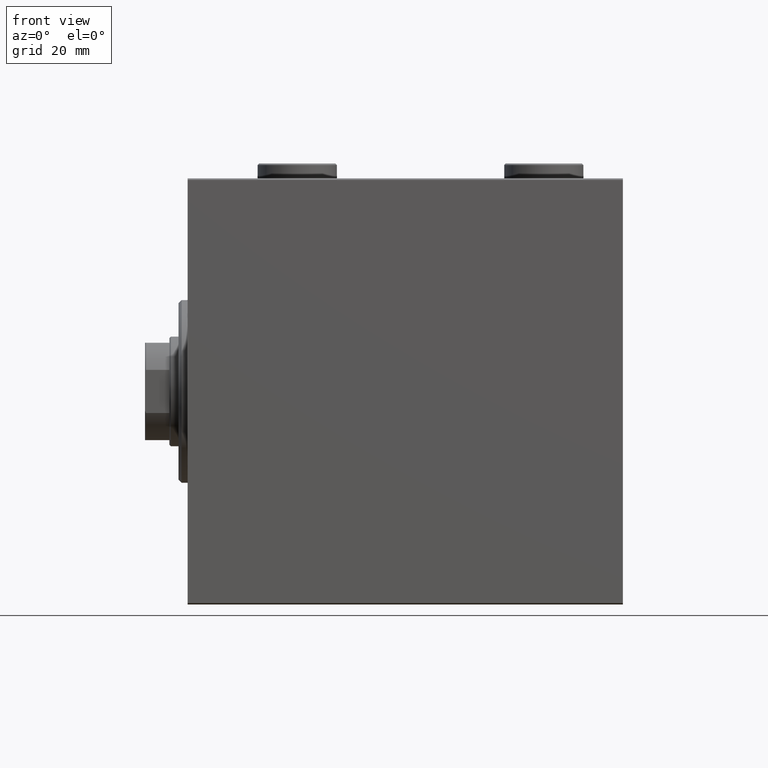
[diagram: clean part render]
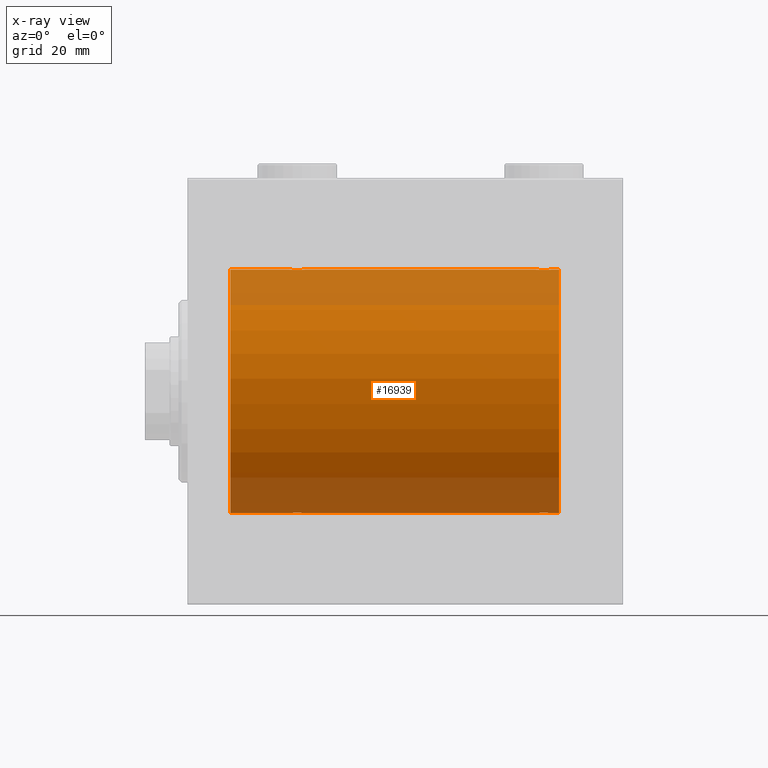
[diagram: x-ray — body ghosted, one internal face saturated and labeled with its STEP entity id]
A machine part, front view, then the same camera in x-ray: the body is ghosted and one INTERNAL B-rep face — a face not visible from any outside direction — is saturated and labeled: STEP entity #16939.
In plain terms, the highlighted cylindrical surface (partial cylindrical patch) has radius 40 mm, axis along (-1, -0, -0).
Its self-contained STEP definition (entity closure, byte-faithful):
#56 = EDGE_CURVE ( 'NONE', #6050, #11014, #20903, .T. ) ;
#741 = CARTESIAN_POINT ( 'NONE',  ( 114.6149239908464779, -1.830402106103529380, 39.95843610133493229 ) ) ;
#964 = CARTESIAN_POINT ( 'NONE',  ( 116.2213047658425609, -2.903766417398247590, 39.89448096967571189 ) ) ;
#1172 = CARTESIAN_POINT ( 'NONE',  ( 122.0000000000000000, 0.000000000000000000, 40.00000000000000000 ) ) ;
#1711 = CARTESIAN_POINT ( 'NONE',  ( 36.77455678826340346, -2.904869018727227914, 39.89440043036668726 ) ) ;
#1962 = VERTEX_POINT ( 'NONE', #36568 ) ;
#2569 = VECTOR ( 'NONE', #42600, 1000.000000000000000 ) ;
#2767 = CARTESIAN_POINT ( 'NONE',  ( 115.1730981536758236, -2.387636253591827629, -39.92882473497732576 ) ) ;
#2986 = CARTESIAN_POINT ( 'NONE',  ( 119.9042517365134728, -0.7773146824711011371, -39.99291453282344833 ) ) ;
#3216 = CARTESIAN_POINT ( 'NONE',  ( 115.0186372048576828, -2.261082456166712884, -39.93628274425758207 ) ) ;
#3403 = ORIENTED_EDGE ( 'NONE', *, *, #32275, .T. ) ;
#3758 = CARTESIAN_POINT ( 'NONE',  ( 114.0957482634864419, -0.7773146824711071323, 39.99291453282344833 ) ) ;
#3872 = CARTESIAN_POINT ( 'NONE',  ( 38.69721340580881730, -1.327859336864143147, -39.97836169682019403 ) ) ;
#4014 = CIRCLE ( 'NONE', #8441, 40.00000000000000000 ) ;
#4105 = CARTESIAN_POINT ( 'NONE',  ( 38.99999999999999289, -0.1957844162750507766, -40.00000000000000711 ) ) ;
#4661 = EDGE_CURVE ( 'NONE', #25065, #33351, #19022, .T. ) ;
#4780 = DIRECTION ( 'NONE',  ( -1.000000000000000000, 0.000000000000000000, 0.000000000000000000 ) ) ;
#4967 = CARTESIAN_POINT ( 'NONE',  ( 38.69537007708436249, -1.331594428131642971, 39.97823692017208685 ) ) ;
#5187 = CARTESIAN_POINT ( 'NONE',  ( 38.92026174991647736, -0.7903958539027394758, 39.99381900068937767 ) ) ;
#5734 = EDGE_CURVE ( 'NONE', #38635, #30618, #10103, .T. ) ;
#5970 = DIRECTION ( 'NONE',  ( -1.000000000000000000, -0.000000000000000000, -0.000000000000000000 ) ) ;
#6016 = CARTESIAN_POINT ( 'NONE',  ( 119.3850760091535221, -1.830402106103519166, -39.95843610133493229 ) ) ;
#6050 = VERTEX_POINT ( 'NONE', #17841 ) ;
#6685 = CARTESIAN_POINT ( 'NONE',  ( 116.2254432117365326, -2.904869018727227914, -39.89440043036668015 ) ) ;
#6886 = CARTESIAN_POINT ( 'NONE',  ( 37.83044822822400022, -2.384933850258100563, -39.92898715513240404 ) ) ;
#7127 = CARTESIAN_POINT ( 'NONE',  ( 38.84665273013138176, -0.9668189122103330035, -39.98872185468385254 ) ) ;
#7237 = CARTESIAN_POINT ( 'NONE',  ( 116.7995871398079970, -2.999840380514755100, 39.88735335562824957 ) ) ;
#7344 = CARTESIAN_POINT ( 'NONE',  ( 33.61748319088535908, -1.833695109615715468, -39.95828327492363741 ) ) ;
#7548 = ORIENTED_EDGE ( 'NONE', *, *, #23116, .F. ) ;
#7563 = CARTESIAN_POINT ( 'NONE',  ( 35.60890307490667794, -2.980812880639891027, -39.88879797994688658 ) ) ;
#7917 = CARTESIAN_POINT ( 'NONE',  ( 118.9813627951422745, -2.261082456166716881, 39.93628274425758207 ) ) ;
#8425 = CARTESIAN_POINT ( 'NONE',  ( 33.15334726986859692, -0.9668189122103391098, 39.98872185468385254 ) ) ;
#8441 = AXIS2_PLACEMENT_3D ( 'NONE', #15399, #4780, #43585 ) ;
#8512 = DIRECTION ( 'NONE',  ( -1.000000000000000000, -0.000000000000000000, -0.000000000000000000 ) ) ;
#8638 = ORIENTED_EDGE ( 'NONE', *, *, #35678, .T. ) ;
#8660 = CARTESIAN_POINT ( 'NONE',  ( 38.60188728128492386, -1.506322235190783232, 39.97196309111974699 ) ) ;
#8758 = CARTESIAN_POINT ( 'NONE',  ( 122.0000000000000000, 0.000000000000000000, 0.000000000000000000 ) ) ;
#8888 = CARTESIAN_POINT ( 'NONE',  ( 32.99999999999997158, -0.1957844162750547734, 40.00000000000000000 ) ) ;
#8969 = CARTESIAN_POINT ( 'NONE',  ( 122.0000000000000000, 4.898587196589412237E-15, -40.00000000000000000 ) ) ;
#9209 = DIRECTION ( 'NONE',  ( 0.000000000000000000, 0.000000000000000000, 1.000000000000000000 ) ) ;
#9239 = LINE ( 'NONE', #19865, #21706 ) ;
#9293 = CARTESIAN_POINT ( 'NONE',  ( 113.9999999999999716, -1.483492375313373751E-23, 40.00000000000000000 ) ) ;
#9480 = CARTESIAN_POINT ( 'NONE',  ( 115.6714635525370340, -2.696981015661936265, -39.90904630908468675 ) ) ;
#9697 = CARTESIAN_POINT ( 'NONE',  ( 114.7417032967949524, -1.984537326394312906, -39.95097977400578060 ) ) ;
#10103 = B_SPLINE_CURVE_WITH_KNOTS ( 'NONE', 3,
 ( #14032, #4105, #42001, #10349, #7127, #3872, #45471, #14720, #27903, #18182, #6886, #42461, #25102, #10806, #39216, #31585, #17727, #13815, #7563, #10127, #28798, #24887, #28128, #38995, #10575, #21640, #7344, #11025, #20743, #24426, #34840, #32038 ),
 .UNSPECIFIED., .F., .F.,
 ( 4, 2, 2, 2, 2, 2, 2, 2, 2, 2, 2, 2, 2, 2, 2, 4 ),
 ( 0.009382660366305108773, 0.009968941372944144577, 0.01055522237958318038, 0.01114150338622221618, 0.01172778439286125199, 0.01231406539950028606, 0.01290034640613932186, 0.01348662741277835767, 0.01407290841941739347, 0.01465918942605642927, 0.01524547043269546508, 0.01583175143933450088, 0.01641803244597353495, 0.01700431345261257249, 0.01759059445925161003, 0.01876315647252967816 ),
 .UNSPECIFIED. ) ;
#10127 = CARTESIAN_POINT ( 'NONE',  ( 35.22544321173658943, -2.904869018727214591, -39.89440043036668015 ) ) ;
#10155 = CARTESIAN_POINT ( 'NONE',  ( 117.7786952341574391, -2.903766417398244037, -39.89448096967572610 ) ) ;
#10349 = CARTESIAN_POINT ( 'NONE',  ( 38.90425173651352253, -0.7773146824710974734, -39.99291453282344122 ) ) ;
#10379 = CARTESIAN_POINT ( 'NONE',  ( 116.8043946892691025, -3.000157693440646867, -39.88732948994960026 ) ) ;
#10575 = CARTESIAN_POINT ( 'NONE',  ( 34.01863720485771125, -2.261082456166699561, -39.93628274425758917 ) ) ;
#10610 = CARTESIAN_POINT ( 'NONE',  ( 39.00000000000000000, 4.071785502645759669E-15, 40.00000000000000000 ) ) ;
#10806 = CARTESIAN_POINT ( 'NONE',  ( 36.96938341894463065, -2.845855236045339520, -39.89870693240651178 ) ) ;
#10921 = CARTESIAN_POINT ( 'NONE',  ( 115.4955691708653234, -2.602909538701771996, 39.91537030566259148 ) ) ;
#11014 = VERTEX_POINT ( 'NONE', #27084 ) ;
#11025 = CARTESIAN_POINT ( 'NONE',  ( 33.39811271871507614, -1.506322235190780345, -39.97196309111976120 ) ) ;
#11185 = DIRECTION ( 'NONE',  ( -1.000000000000000000, -0.000000000000000000, -0.000000000000000000 ) ) ;
#11341 = CIRCLE ( 'NONE', #25377, 40.00000000000000000 ) ;
#11343 = ORIENTED_EDGE ( 'NONE', *, *, #38558, .T. ) ;
#11606 = CARTESIAN_POINT ( 'NONE',  ( 118.5008846840403578, -2.604941918888326935, 39.91523680494982784 ) ) ;
#11625 = CARTESIAN_POINT ( 'NONE',  ( 13.99999999999999822, 0.000000000000000000, 0.000000000000000000 ) ) ;
#11882 = CARTESIAN_POINT ( 'NONE',  ( 34.66775731134134730, -2.695129988695744494, 39.90917164320281074 ) ) ;
#12349 = CARTESIAN_POINT ( 'NONE',  ( 33.30278659419118270, -1.327859336864150475, 39.97836169682017982 ) ) ;
#12940 = CARTESIAN_POINT ( 'NONE',  ( 117.9693834189446449, -2.845855236045348846, -39.89870693240651178 ) ) ;
#13165 = CARTESIAN_POINT ( 'NONE',  ( 120.0000000000000142, -0.1957844162750523864, -40.00000000000000000 ) ) ;
#13815 = CARTESIAN_POINT ( 'NONE',  ( 35.80439468926913804, -3.000157693440631324, -39.88732948994960026 ) ) ;
#13843 = CARTESIAN_POINT ( 'NONE',  ( 119.6972134058087960, -1.327859336864152251, -39.97836169682017271 ) ) ;
#14032 = CARTESIAN_POINT ( 'NONE',  ( 39.00000000000000000, 4.898587181755365697E-15, -40.00000000000000000 ) ) ;
#14150 = CARTESIAN_POINT ( 'NONE',  ( 113.9999999999999716, -1.483492375313373751E-23, 40.00000000000000000 ) ) ;
#14379 = CARTESIAN_POINT ( 'NONE',  ( 114.3956640008791510, -1.502129635934016383, 39.97212271185185983 ) ) ;
#14720 = CARTESIAN_POINT ( 'NONE',  ( 38.38507600915353635, -1.830402106103512505, -39.95843610133492518 ) ) ;
#14853 = CARTESIAN_POINT ( 'NONE',  ( 39.00000000000000000, 4.898587181755365697E-15, -40.00000000000000000 ) ) ;
#14889 = CARTESIAN_POINT ( 'NONE',  ( 37.50088468404035069, -2.604941918888316721, 39.91523680494982784 ) ) ;
#15008 = DIRECTION ( 'NONE',  ( -1.000000000000000000, -0.000000000000000000, -0.000000000000000000 ) ) ;
#15356 = CARTESIAN_POINT ( 'NONE',  ( 35.03061658105534804, -2.845855236045349734, 39.89870693240651889 ) ) ;
#15399 = CARTESIAN_POINT ( 'NONE',  ( 122.0000000000000000, 0.000000000000000000, 0.000000000000000000 ) ) ;
#15862 = EDGE_CURVE ( 'NONE', #25065, #21968, #26085, .T. ) ;
#16295 = ORIENTED_EDGE ( 'NONE', *, *, #17220, .F. ) ;
#16554 = ORIENTED_EDGE ( 'NONE', *, *, #5734, .T. ) ;
#16572 = VECTOR ( 'NONE', #8512, 1000.000000000000000 ) ;
#16637 = B_SPLINE_CURVE_WITH_KNOTS ( 'NONE', 3,
 ( #20551, #13165, #41344, #2986, #45268, #13843, #20323, #6016, #24235, #27707, #20772, #41128, #41811, #12940, #10155, #21003, #38339, #10379, #34188, #6685, #20097, #9480, #23560, #2767, #3216, #9697, #23779, #27932, #17300, #37665, #35111, #34419 ),
 .UNSPECIFIED., .F., .F.,
 ( 4, 2, 2, 2, 2, 2, 2, 2, 2, 2, 2, 2, 2, 2, 2, 4 ),
 ( 0.009382660366305122651, 0.009968941372944160190, 0.01055522237958319946, 0.01114150338622223700, 0.01172778439286127627, 0.01231406539950031381, 0.01290034640613935135, 0.01348662741277838716, 0.01407290841941742469, 0.01465918942605646223, 0.01524547043269549804, 0.01583175143933453557, 0.01641803244597357311, 0.01700431345261261065, 0.01759059445925164819, 0.01876315647252972327 ),
 .UNSPECIFIED. ) ;
#16939 = ADVANCED_FACE ( 'NONE', ( #22834 ), #36717, .F. ) ;
#17220 = EDGE_CURVE ( 'NONE', #6050, #31789, #4014, .T. ) ;
#17300 = CARTESIAN_POINT ( 'NONE',  ( 114.3046299229155949, -1.331594428131648300, -39.97823692017208685 ) ) ;
#17617 = CARTESIAN_POINT ( 'NONE',  ( 115.0153855218771781, -2.258217541132916395, 39.93644519243652979 ) ) ;
#17727 = CARTESIAN_POINT ( 'NONE',  ( 36.20041286019198168, -2.999840380514735116, -39.88735335562824957 ) ) ;
#17841 = CARTESIAN_POINT ( 'NONE',  ( 122.0000000000000000, 4.898587196589412237E-15, -40.00000000000000000 ) ) ;
#18065 = CARTESIAN_POINT ( 'NONE',  ( 114.3027865941911756, -1.327859336864157358, 39.97836169682016561 ) ) ;
#18182 = CARTESIAN_POINT ( 'NONE',  ( 37.98461447812280056, -2.258217541132897743, -39.93644519243654400 ) ) ;
#18519 = CARTESIAN_POINT ( 'NONE',  ( 114.0189812288907234, -0.3904143323716007807, 39.99856256910221219 ) ) ;
#18562 = EDGE_CURVE ( 'NONE', #21577, #26166, #32453, .T. ) ;
#18574 = CARTESIAN_POINT ( 'NONE',  ( 32.99999999999999289, -1.483492375313373751E-23, 40.00000000000000000 ) ) ;
#18659 = CARTESIAN_POINT ( 'NONE',  ( 122.0000000000000000, 0.000000000000000000, 40.00000000000000000 ) ) ;
#18808 = CARTESIAN_POINT ( 'NONE',  ( 33.61492399084646365, -1.830402106103521387, 39.95843610133494650 ) ) ;
#19022 = B_SPLINE_CURVE_WITH_KNOTS ( 'NONE', 3,
 ( #18574, #8888, #29211, #22513, #8425, #12349, #36377, #18808, #32911, #43539, #29656, #36841, #11882, #15356, #29436, #26434, #25969, #44005, #33136, #1711, #25515, #32666, #14889, #40525, #28973, #40060, #22047, #8660, #4967, #5187, #19045, #43081 ),
 .UNSPECIFIED., .F., .F.,
 ( 4, 2, 2, 2, 2, 2, 2, 2, 2, 2, 2, 2, 2, 2, 2, 4 ),
 ( 0.009382660366305126121, 0.009968941372944165394, 0.01055522237958320467, 0.01114150338622224221, 0.01172778439286128321, 0.01231406539950032075, 0.01290034640613936176, 0.01348662741277839930, 0.01407290841941744031, 0.01465918942605647958, 0.01524547043269551885, 0.01583175143933455639, 0.01641803244597359740, 0.01700431345261263494, 0.01759059445925167248, 0.01876315647252975102 ),
 .UNSPECIFIED. ) ;
#19045 = CARTESIAN_POINT ( 'NONE',  ( 39.00000000000000711, -0.3964922677423716180, 39.99999999999998579 ) ) ;
#19229 = CARTESIAN_POINT ( 'NONE',  ( 32.99999999999999289, 4.712309501303050243E-15, -40.00000000000000000 ) ) ;
#19865 = CARTESIAN_POINT ( 'NONE',  ( 122.0000000000000000, 0.000000000000000000, 40.00000000000000000 ) ) ;
#20097 = CARTESIAN_POINT ( 'NONE',  ( 116.0351067414648014, -2.847401743820467512, -39.89859630624608400 ) ) ;
#20323 = CARTESIAN_POINT ( 'NONE',  ( 119.6043359991208490, -1.502129635934005947, -39.97212271185186694 ) ) ;
#20551 = CARTESIAN_POINT ( 'NONE',  ( 119.9999999999999858, 4.898587181754971267E-15, -40.00000000000000000 ) ) ;
#20743 = CARTESIAN_POINT ( 'NONE',  ( 33.30462992291564461, -1.331594428131640973, -39.97823692017209396 ) ) ;
#20772 = CARTESIAN_POINT ( 'NONE',  ( 118.8304482282240144, -2.384933850258111665, -39.92898715513241115 ) ) ;
#20903 = LINE ( 'NONE', #42848, #43099 ) ;
#21003 = CARTESIAN_POINT ( 'NONE',  ( 117.3952248345357532, -2.980272303779556431, -39.88883864243169342 ) ) ;
#21533 = CARTESIAN_POINT ( 'NONE',  ( 119.2582967032049766, -1.984537326394317569, 39.95097977400578060 ) ) ;
#21577 = VERTEX_POINT ( 'NONE', #9293 ) ;
#21640 = CARTESIAN_POINT ( 'NONE',  ( 33.74170329679496660, -1.984537326394300250, -39.95097977400578060 ) ) ;
#21706 = VECTOR ( 'NONE', #44132, 1000.000000000000000 ) ;
#21757 = CARTESIAN_POINT ( 'NONE',  ( 119.9202617499164916, -0.7903958539027468033, 39.99381900068937057 ) ) ;
#21909 = EDGE_CURVE ( 'NONE', #21577, #33351, #9239, .T. ) ;
#21968 = VERTEX_POINT ( 'NONE', #23094 ) ;
#22047 = CARTESIAN_POINT ( 'NONE',  ( 38.38251680911464092, -1.833695109615718799, 39.95828327492363741 ) ) ;
#22091 = EDGE_LOOP ( 'NONE', ( #16295, #40899, #28785, #3403, #16554, #11343, #8638, #36125, #28371, #29555, #24659, #7548 ) ) ;
#22513 = CARTESIAN_POINT ( 'NONE',  ( 33.09574826348647036, -0.7773146824711035796, 39.99291453282343412 ) ) ;
#22834 = FACE_OUTER_BOUND ( 'NONE', #22091, .T. ) ;
#23094 = CARTESIAN_POINT ( 'NONE',  ( 13.99999999999999822, 0.000000000000000000, 40.00000000000000000 ) ) ;
#23116 = EDGE_CURVE ( 'NONE', #31789, #26166, #32751, .T. ) ;
#23560 = CARTESIAN_POINT ( 'NONE',  ( 115.4991153159596280, -2.604941918888322494, -39.91523680494982784 ) ) ;
#23779 = CARTESIAN_POINT ( 'NONE',  ( 114.6174831908853378, -1.833695109615724350, -39.95828327492363741 ) ) ;
#23891 = AXIS2_PLACEMENT_3D ( 'NONE', #8758, #5970, #9209 ) ;
#24235 = CARTESIAN_POINT ( 'NONE',  ( 119.2609761699474262, -1.981471132463164420, -39.95113231465138881 ) ) ;
#24426 = CARTESIAN_POINT ( 'NONE',  ( 33.07973825008353685, -0.7903958539027368113, -39.99381900068937767 ) ) ;
#24659 = ORIENTED_EDGE ( 'NONE', *, *, #18562, .T. ) ;
#24769 = CARTESIAN_POINT ( 'NONE',  ( 116.6047751654642326, -2.980272303779561316, 39.88883864243167920 ) ) ;
#24887 = CARTESIAN_POINT ( 'NONE',  ( 34.67146355253701984, -2.696981015661916725, -39.90904630908466544 ) ) ;
#24995 = CARTESIAN_POINT ( 'NONE',  ( 117.3910969250933221, -2.980812880639910123, 39.88879797994688658 ) ) ;
#25065 = VERTEX_POINT ( 'NONE', #39317 ) ;
#25102 = CARTESIAN_POINT ( 'NONE',  ( 37.33224268865864559, -2.695129988695734724, -39.90917164320281785 ) ) ;
#25218 = CARTESIAN_POINT ( 'NONE',  ( 117.1956053107308264, -3.000157693440651752, 39.88732948994960026 ) ) ;
#25377 = AXIS2_PLACEMENT_3D ( 'NONE', #11625, #39800, #25933 ) ;
#25455 = CARTESIAN_POINT ( 'NONE',  ( 113.9999999999999716, -0.1957844162750575212, 39.99999999999999289 ) ) ;
#25515 = CARTESIAN_POINT ( 'NONE',  ( 36.96489325853513463, -2.847401743820462627, 39.89859630624607689 ) ) ;
#25933 = DIRECTION ( 'NONE',  ( 0.000000000000000000, 0.000000000000000000, 1.000000000000000000 ) ) ;
#25969 = CARTESIAN_POINT ( 'NONE',  ( 35.79958713980802543, -2.999840380514749327, 39.88735335562824247 ) ) ;
#26085 = LINE ( 'NONE', #29323, #40084 ) ;
#26091 = CARTESIAN_POINT ( 'NONE',  ( 119.9999999999999858, -2.794909241144302331E-15, 40.00000000000000000 ) ) ;
#26166 = VERTEX_POINT ( 'NONE', #26091 ) ;
#26434 = CARTESIAN_POINT ( 'NONE',  ( 35.60477516546423971, -2.980272303779553766, 39.88883864243167920 ) ) ;
#27084 = CARTESIAN_POINT ( 'NONE',  ( 119.9999999999999858, 4.898587181754971267E-15, -40.00000000000000000 ) ) ;
#27707 = CARTESIAN_POINT ( 'NONE',  ( 118.9846144781227650, -2.258217541132900408, -39.93644519243653690 ) ) ;
#27903 = CARTESIAN_POINT ( 'NONE',  ( 38.26097616994740491, -1.981471132463163087, -39.95113231465139592 ) ) ;
#27909 = VECTOR ( 'NONE', #38063, 1000.000000000000000 ) ;
#27932 = CARTESIAN_POINT ( 'NONE',  ( 114.3981127187150264, -1.506322235190789893, -39.97196309111974699 ) ) ;
#28128 = CARTESIAN_POINT ( 'NONE',  ( 34.49911531595965641, -2.604941918888302954, -39.91523680494983495 ) ) ;
#28236 = CARTESIAN_POINT ( 'NONE',  ( 115.1695517717759998, -2.384933850258125876, 39.92898715513240404 ) ) ;
#28371 = ORIENTED_EDGE ( 'NONE', *, *, #4661, .T. ) ;
#28469 = CARTESIAN_POINT ( 'NONE',  ( 116.0306165810553267, -2.845855236045354619, 39.89870693240651178 ) ) ;
#28785 = ORIENTED_EDGE ( 'NONE', *, *, #39827, .T. ) ;
#28798 = CARTESIAN_POINT ( 'NONE',  ( 35.03510674146484405, -2.847401743820450193, -39.89859630624608400 ) ) ;
#28973 = CARTESIAN_POINT ( 'NONE',  ( 37.98136279514229585, -2.261082456166707555, 39.93628274425758207 ) ) ;
#29211 = CARTESIAN_POINT ( 'NONE',  ( 33.01898122889073051, -0.3904143323715977831, 39.99856256910221219 ) ) ;
#29323 = CARTESIAN_POINT ( 'NONE',  ( 122.0000000000000000, 0.000000000000000000, 40.00000000000000000 ) ) ;
#29436 = CARTESIAN_POINT ( 'NONE',  ( 35.22130476584258219, -2.903766417398241373, 39.89448096967571189 ) ) ;
#29555 = ORIENTED_EDGE ( 'NONE', *, *, #21909, .F. ) ;
#29656 = CARTESIAN_POINT ( 'NONE',  ( 34.16955177177597847, -2.384933850258112553, 39.92898715513240404 ) ) ;
#29976 = LINE ( 'NONE', #8969, #27909 ) ;
#30618 = VERTEX_POINT ( 'NONE', #19229 ) ;
#31585 = CARTESIAN_POINT ( 'NONE',  ( 36.39522483453575319, -2.980272303779543108, -39.88883864243169342 ) ) ;
#31789 = VERTEX_POINT ( 'NONE', #1172 ) ;
#32038 = CARTESIAN_POINT ( 'NONE',  ( 32.99999999999999289, 4.712309501303050243E-15, -40.00000000000000000 ) ) ;
#32275 = EDGE_CURVE ( 'NONE', #1962, #38635, #29976, .T. ) ;
#32379 = CARTESIAN_POINT ( 'NONE',  ( 118.3285364474629233, -2.696981015661940262, 39.90904630908467254 ) ) ;
#32453 = B_SPLINE_CURVE_WITH_KNOTS ( 'NONE', 3,
 ( #14150, #25455, #18519, #3758, #42796, #18065, #14379, #741, #42578, #17617, #28236, #10921, #43024, #28469, #964, #24769, #7237, #25218, #24995, #35414, #39101, #32379, #11606, #42339, #7917, #21533, #39321, #43260, #35637, #21757, #38646, #35195 ),
 .UNSPECIFIED., .F., .F.,
 ( 4, 2, 2, 2, 2, 2, 2, 2, 2, 2, 2, 2, 2, 2, 2, 4 ),
 ( 0.009382660366305098365, 0.009968941372944135904, 0.01055522237958317344, 0.01114150338622220925, 0.01172778439286124678, 0.01231406539950028432, 0.01290034640613932013, 0.01348662741277835767, 0.01407290841941739520, 0.01465918942605643274, 0.01524547043269547028, 0.01583175143933450435, 0.01641803244597354189, 0.01700431345261257943, 0.01759059445925161697, 0.01876315647252969204 ),
 .UNSPECIFIED. ) ;
#32630 = CARTESIAN_POINT ( 'NONE',  ( 122.0000000000000000, 4.898587196589412237E-15, -40.00000000000000000 ) ) ;
#32666 = CARTESIAN_POINT ( 'NONE',  ( 37.32853644746298016, -2.696981015661931380, 39.90904630908468675 ) ) ;
#32751 = LINE ( 'NONE', #18659, #16572 ) ;
#32911 = CARTESIAN_POINT ( 'NONE',  ( 33.73902383005258088, -1.981471132463169971, 39.95113231465138881 ) ) ;
#33136 = CARTESIAN_POINT ( 'NONE',  ( 36.39109692509333627, -2.980812880639903906, 39.88879797994688658 ) ) ;
#33351 = VERTEX_POINT ( 'NONE', #10610 ) ;
#33569 = VERTEX_POINT ( 'NONE', #40506 ) ;
#34188 = CARTESIAN_POINT ( 'NONE',  ( 116.6089030749066353, -2.980812880639904794, -39.88879797994688658 ) ) ;
#34419 = CARTESIAN_POINT ( 'NONE',  ( 113.9999999999999716, -4.239806828413800636E-15, -40.00000000000000000 ) ) ;
#34840 = CARTESIAN_POINT ( 'NONE',  ( 33.00000000000000000, -0.3964922677423646791, -40.00000000000002132 ) ) ;
#35111 = CARTESIAN_POINT ( 'NONE',  ( 113.9999999999999147, -0.3964922677423722841, -40.00000000000000000 ) ) ;
#35195 = CARTESIAN_POINT ( 'NONE',  ( 119.9999999999999858, -2.794909241144302331E-15, 40.00000000000000000 ) ) ;
#35414 = CARTESIAN_POINT ( 'NONE',  ( 117.7745567882633679, -2.904869018727233687, 39.89440043036668726 ) ) ;
#35637 = CARTESIAN_POINT ( 'NONE',  ( 119.6953700770843341, -1.331594428131652963, 39.97823692017208685 ) ) ;
#35659 = LINE ( 'NONE', #32630, #2569 ) ;
#35678 = EDGE_CURVE ( 'NONE', #33569, #21968, #11341, .T. ) ;
#36125 = ORIENTED_EDGE ( 'NONE', *, *, #15862, .F. ) ;
#36377 = CARTESIAN_POINT ( 'NONE',  ( 33.39566400087917231, -1.502129635934007945, 39.97212271185186694 ) ) ;
#36568 = CARTESIAN_POINT ( 'NONE',  ( 113.9999999999999716, -4.239806828413800636E-15, -40.00000000000000000 ) ) ;
#36717 = CYLINDRICAL_SURFACE ( 'NONE', #23891, 40.00000000000000000 ) ;
#36841 = CARTESIAN_POINT ( 'NONE',  ( 34.49556917086533758, -2.602909538701760006, 39.91537030566259148 ) ) ;
#37665 = CARTESIAN_POINT ( 'NONE',  ( 114.0797382500835084, -0.7903958539027446939, -39.99381900068937057 ) ) ;
#38063 = DIRECTION ( 'NONE',  ( -1.000000000000000000, -0.000000000000000000, -0.000000000000000000 ) ) ;
#38339 = CARTESIAN_POINT ( 'NONE',  ( 117.2004128601919888, -2.999840380514750215, -39.88735335562824957 ) ) ;
#38558 = EDGE_CURVE ( 'NONE', #30618, #33569, #35659, .T. ) ;
#38635 = VERTEX_POINT ( 'NONE', #14853 ) ;
#38646 = CARTESIAN_POINT ( 'NONE',  ( 120.0000000000000000, -0.3964922677423690645, 40.00000000000000000 ) ) ;
#38995 = CARTESIAN_POINT ( 'NONE',  ( 34.17309815367588044, -2.387636253591807201, -39.92882473497731866 ) ) ;
#39101 = CARTESIAN_POINT ( 'NONE',  ( 117.9648932585351417, -2.847401743820471065, 39.89859630624608400 ) ) ;
#39216 = CARTESIAN_POINT ( 'NONE',  ( 36.77869523415741071, -2.903766417398228938, -39.89448096967571189 ) ) ;
#39317 = CARTESIAN_POINT ( 'NONE',  ( 32.99999999999999289, -1.483492375313373751E-23, 40.00000000000000000 ) ) ;
#39321 = CARTESIAN_POINT ( 'NONE',  ( 119.3825168091146480, -1.833695109615728125, 39.95828327492363741 ) ) ;
#39800 = DIRECTION ( 'NONE',  ( -1.000000000000000000, 0.000000000000000000, 0.000000000000000000 ) ) ;
#39827 = EDGE_CURVE ( 'NONE', #11014, #1962, #16637, .T. ) ;
#40060 = CARTESIAN_POINT ( 'NONE',  ( 38.25829670320502629, -1.984537326394305801, 39.95097977400578060 ) ) ;
#40084 = VECTOR ( 'NONE', #15008, 1000.000000000000000 ) ;
#40506 = CARTESIAN_POINT ( 'NONE',  ( 13.99999999999999822, 4.898587196589412237E-15, -40.00000000000000000 ) ) ;
#40525 = CARTESIAN_POINT ( 'NONE',  ( 37.82690184632410535, -2.387636253591820079, 39.92882473497732576 ) ) ;
#40899 = ORIENTED_EDGE ( 'NONE', *, *, #56, .T. ) ;
#41128 = CARTESIAN_POINT ( 'NONE',  ( 118.5044308291346908, -2.602909538701760450, -39.91537030566259148 ) ) ;
#41344 = CARTESIAN_POINT ( 'NONE',  ( 119.9810187711092340, -0.3904143323715947300, -39.99856256910220509 ) ) ;
#41811 = CARTESIAN_POINT ( 'NONE',  ( 118.3322426886586385, -2.695129988695742274, -39.90917164320281785 ) ) ;
#42001 = CARTESIAN_POINT ( 'NONE',  ( 38.98101877110926949, -0.3904143323715923986, -39.99856256910221930 ) ) ;
#42339 = CARTESIAN_POINT ( 'NONE',  ( 118.8269018463240911, -2.387636253591832514, 39.92882473497732576 ) ) ;
#42461 = CARTESIAN_POINT ( 'NONE',  ( 37.50443082913467663, -2.602909538701746683, -39.91537030566259858 ) ) ;
#42578 = CARTESIAN_POINT ( 'NONE',  ( 114.7390238300525596, -1.981471132463181295, 39.95113231465138881 ) ) ;
#42600 = DIRECTION ( 'NONE',  ( -1.000000000000000000, -0.000000000000000000, -0.000000000000000000 ) ) ;
#42796 = CARTESIAN_POINT ( 'NONE',  ( 114.1533472698685898, -0.9668189122103458821, 39.98872185468384544 ) ) ;
#42848 = CARTESIAN_POINT ( 'NONE',  ( 122.0000000000000000, 4.898587196589412237E-15, -40.00000000000000000 ) ) ;
#43024 = CARTESIAN_POINT ( 'NONE',  ( 115.6677573113413473, -2.695129988695747603, 39.90917164320281785 ) ) ;
#43081 = CARTESIAN_POINT ( 'NONE',  ( 39.00000000000000000, 4.071785502645759669E-15, 40.00000000000000000 ) ) ;
#43099 = VECTOR ( 'NONE', #11185, 1000.000000000000000 ) ;
#43260 = CARTESIAN_POINT ( 'NONE',  ( 119.6018872812849168, -1.506322235190793668, 39.97196309111975410 ) ) ;
#43539 = CARTESIAN_POINT ( 'NONE',  ( 34.01538552187719944, -2.258217541132906181, 39.93644519243653690 ) ) ;
#43585 = DIRECTION ( 'NONE',  ( 0.000000000000000000, 0.000000000000000000, 1.000000000000000000 ) ) ;
#44005 = CARTESIAN_POINT ( 'NONE',  ( 36.19560531073086196, -3.000157693440644202, 39.88732948994960026 ) ) ;
#44132 = DIRECTION ( 'NONE',  ( -1.000000000000000000, -0.000000000000000000, -0.000000000000000000 ) ) ;
#45268 = CARTESIAN_POINT ( 'NONE',  ( 119.8466527301314244, -0.9668189122103406641, -39.98872185468385254 ) ) ;
#45471 = CARTESIAN_POINT ( 'NONE',  ( 38.60433599912082769, -1.502129635934000396, -39.97212271185185983 ) ) ;